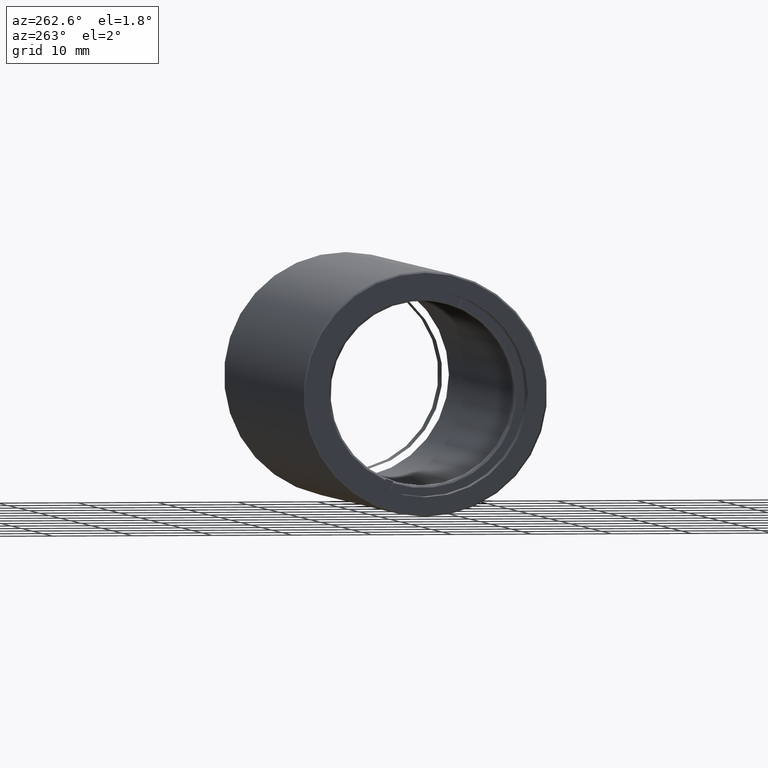
[diagram: clean part render]
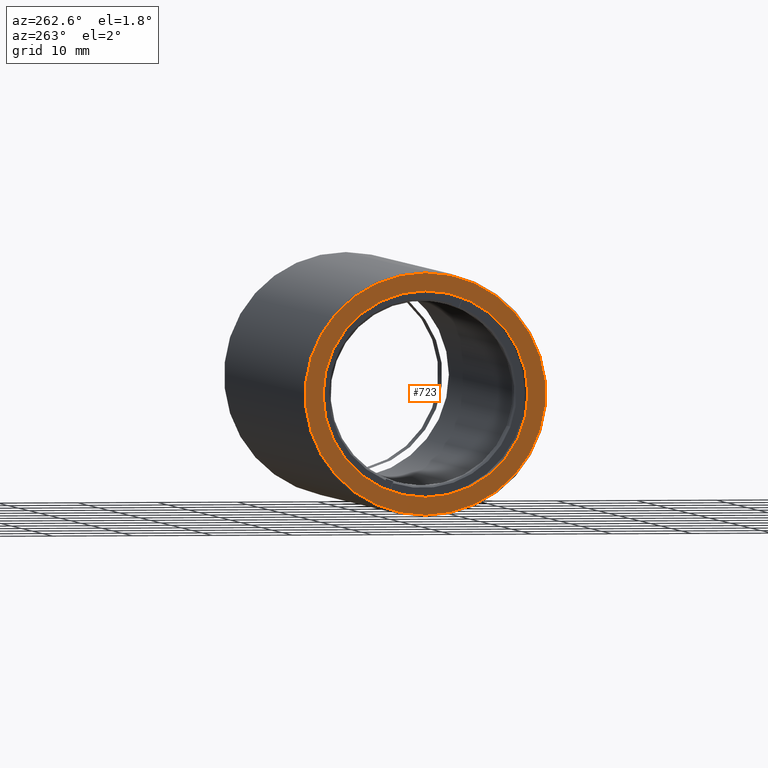
[diagram: same view with one face highlighted and labeled with its STEP entity id]
A machine part, auxiliary view. The second image highlights one B-rep face of the part: STEP entity #723.
In plain terms, the highlighted planar face has unit normal (-1, 0, 0).
Its self-contained STEP definition (entity closure, byte-faithful):
#21 = CIRCLE ( 'NONE', #379, 15.05000000000000782 ) ;
#74 = EDGE_CURVE ( 'NONE', #1115, #1233, #1341, .T. ) ;
#103 = DIRECTION ( 'NONE',  ( -1.000000000000000000, 0.000000000000000000, 0.000000000000000000 ) ) ;
#132 = ORIENTED_EDGE ( 'NONE', *, *, #74, .F. ) ;
#149 = AXIS2_PLACEMENT_3D ( 'NONE', #972, #103, #1442 ) ;
#224 = EDGE_CURVE ( 'NONE', #1233, #1115, #1090, .T. ) ;
#373 = DIRECTION ( 'NONE',  ( 0.000000000000000000, 0.000000000000000000, 1.000000000000000000 ) ) ;
#379 = AXIS2_PLACEMENT_3D ( 'NONE', #1511, #1047, #1277 ) ;
#565 = FACE_BOUND ( 'NONE', #571, .T. ) ;
#571 = EDGE_LOOP ( 'NONE', ( #1288, #132 ) ) ;
#601 = DIRECTION ( 'NONE',  ( -1.000000000000000000, 0.000000000000000000, 0.000000000000000000 ) ) ;
#619 = ORIENTED_EDGE ( 'NONE', *, *, #1287, .T. ) ;
#658 = CARTESIAN_POINT ( 'NONE',  ( -73.47400000000003217, -20.10857142857141966, 0.000000000000000000 ) ) ;
#677 = CARTESIAN_POINT ( 'NONE',  ( -73.47400000000003217, -20.10857142857141966, -12.82699999999999818 ) ) ;
#697 = VERTEX_POINT ( 'NONE', #753 ) ;
#703 = CARTESIAN_POINT ( 'NONE',  ( -73.47400000000003217, -20.10857142857141966, 0.000000000000000000 ) ) ;
#723 = ADVANCED_FACE ( 'NONE', ( #1283, #565 ), #1397, .T. ) ;
#753 = CARTESIAN_POINT ( 'NONE',  ( -73.47400000000003217, -20.10857142857141966, -15.05000000000000782 ) ) ;
#785 = DIRECTION ( 'NONE',  ( 0.000000000000000000, 0.000000000000000000, 1.000000000000000000 ) ) ;
#812 = ORIENTED_EDGE ( 'NONE', *, *, #923, .T. ) ;
#889 = AXIS2_PLACEMENT_3D ( 'NONE', #703, #601, #961 ) ;
#912 = DIRECTION ( 'NONE',  ( -1.000000000000000000, 0.000000000000000000, 0.000000000000000000 ) ) ;
#923 = EDGE_CURVE ( 'NONE', #1033, #697, #1281, .T. ) ;
#961 = DIRECTION ( 'NONE',  ( 0.000000000000000000, 0.000000000000000000, 1.000000000000000000 ) ) ;
#972 = CARTESIAN_POINT ( 'NONE',  ( -73.47400000000003217, -20.10857142857141966, 0.000000000000000000 ) ) ;
#996 = CARTESIAN_POINT ( 'NONE',  ( -73.47400000000003217, -20.10857142857141966, 0.000000000000000000 ) ) ;
#1019 = CARTESIAN_POINT ( 'NONE',  ( -73.47400000000003217, -20.10857142857141966, 12.82699999999999818 ) ) ;
#1033 = VERTEX_POINT ( 'NONE', #1561 ) ;
#1047 = DIRECTION ( 'NONE',  ( -1.000000000000000000, 0.000000000000000000, 0.000000000000000000 ) ) ;
#1075 = AXIS2_PLACEMENT_3D ( 'NONE', #996, #1367, #373 ) ;
#1090 = CIRCLE ( 'NONE', #1075, 12.82699999999999818 ) ;
#1115 = VERTEX_POINT ( 'NONE', #1019 ) ;
#1221 = EDGE_LOOP ( 'NONE', ( #619, #812 ) ) ;
#1233 = VERTEX_POINT ( 'NONE', #677 ) ;
#1277 = DIRECTION ( 'NONE',  ( 0.000000000000000000, 0.000000000000000000, 1.000000000000000000 ) ) ;
#1281 = CIRCLE ( 'NONE', #889, 15.05000000000000782 ) ;
#1283 = FACE_OUTER_BOUND ( 'NONE', #1221, .T. ) ;
#1287 = EDGE_CURVE ( 'NONE', #697, #1033, #21, .T. ) ;
#1288 = ORIENTED_EDGE ( 'NONE', *, *, #224, .F. ) ;
#1341 = CIRCLE ( 'NONE', #149, 12.82699999999999818 ) ;
#1367 = DIRECTION ( 'NONE',  ( -1.000000000000000000, 0.000000000000000000, 0.000000000000000000 ) ) ;
#1397 = PLANE ( 'NONE',  #1523 ) ;
#1442 = DIRECTION ( 'NONE',  ( 0.000000000000000000, 0.000000000000000000, 1.000000000000000000 ) ) ;
#1511 = CARTESIAN_POINT ( 'NONE',  ( -73.47400000000003217, -20.10857142857141966, 0.000000000000000000 ) ) ;
#1523 = AXIS2_PLACEMENT_3D ( 'NONE', #658, #912, #785 ) ;
#1561 = CARTESIAN_POINT ( 'NONE',  ( -73.47400000000003217, -20.10857142857141611, 15.05000000000000782 ) ) ;